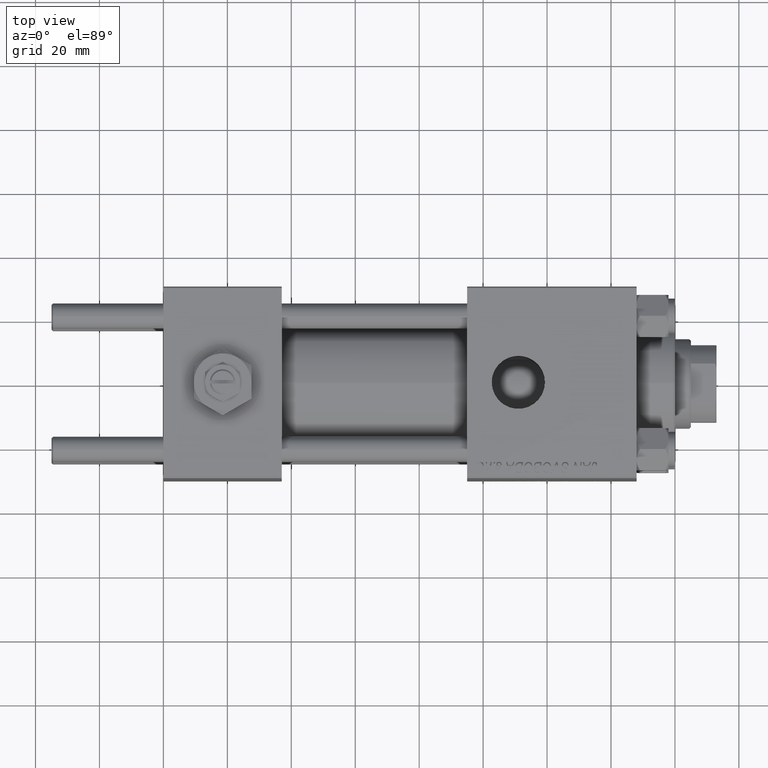
[diagram: clean part render]
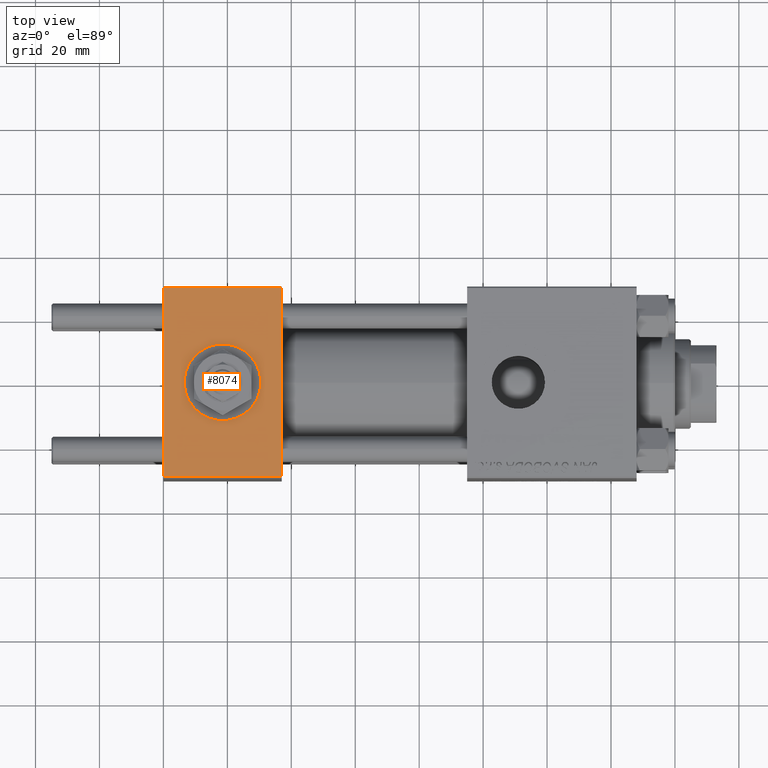
[diagram: same view with one face highlighted and labeled with its STEP entity id]
A machine part, top view. The second image highlights one B-rep face of the part: STEP entity #8074.
In plain terms, the highlighted planar face has unit normal (0, 0, -1).
Its self-contained STEP definition (entity closure, byte-faithful):
#433 = VERTEX_POINT ( 'NONE', #21205 ) ;
#656 = DIRECTION ( 'NONE',  ( -1.000000000000000000, 0.000000000000000000, 0.000000000000000000 ) ) ;
#1170 = LINE ( 'NONE', #45275, #20748 ) ;
#1248 = AXIS2_PLACEMENT_3D ( 'NONE', #49305, #45096, #8616 ) ;
#2579 = CARTESIAN_POINT ( 'NONE',  ( 37.00000000000000000, -29.49999999999998579, 29.99999999999999289 ) ) ;
#2925 = FACE_BOUND ( 'NONE', #46555, .T. ) ;
#3040 = VECTOR ( 'NONE', #656, 1000.000000000000000 ) ;
#4075 = ORIENTED_EDGE ( 'NONE', *, *, #30136, .F. ) ;
#4432 = VERTEX_POINT ( 'NONE', #13449 ) ;
#5857 = CARTESIAN_POINT ( 'NONE',  ( 0.000000000000000000, -29.49999999999998579, 29.99999999999999289 ) ) ;
#6926 = ORIENTED_EDGE ( 'NONE', *, *, #10088, .F. ) ;
#8074 = ADVANCED_FACE ( 'NONE', ( #2925, #33667 ), #29988, .F. ) ;
#8616 = DIRECTION ( 'NONE',  ( 1.000000000000000000, 0.000000000000000000, 0.000000000000000000 ) ) ;
#10088 = EDGE_CURVE ( 'NONE', #48600, #16964, #39950, .T. ) ;
#13449 = CARTESIAN_POINT ( 'NONE',  ( 30.50000000000000000, -3.469446951953614978E-15, 29.99999999999999645 ) ) ;
#13707 = DIRECTION ( 'NONE',  ( 0.000000000000000000, 1.156482317317871725E-16, -1.000000000000000000 ) ) ;
#14354 = EDGE_CURVE ( 'NONE', #4432, #29085, #41119, .T. ) ;
#15237 = ORIENTED_EDGE ( 'NONE', *, *, #46481, .T. ) ;
#16090 = LINE ( 'NONE', #47598, #48497 ) ;
#16964 = VERTEX_POINT ( 'NONE', #2579 ) ;
#17214 = CARTESIAN_POINT ( 'NONE',  ( 0.000000000000000000, 29.49999999999999289, 30.00000000000000000 ) ) ;
#19993 = DIRECTION ( 'NONE',  ( 0.000000000000000000, -1.000000000000000000, -1.156482317317871725E-16 ) ) ;
#20748 = VECTOR ( 'NONE', #33209, 1000.000000000000000 ) ;
#21205 = CARTESIAN_POINT ( 'NONE',  ( 0.000000000000000000, 29.49999999999999289, 30.00000000000000000 ) ) ;
#22096 = ORIENTED_EDGE ( 'NONE', *, *, #42193, .T. ) ;
#23666 = DIRECTION ( 'NONE',  ( 0.000000000000000000, 0.000000000000000000, 1.000000000000000000 ) ) ;
#24200 = ORIENTED_EDGE ( 'NONE', *, *, #14354, .F. ) ;
#24828 = LINE ( 'NONE', #17214, #3040 ) ;
#24880 = CARTESIAN_POINT ( 'NONE',  ( 18.50000000000000000, -3.469446951953614978E-15, 29.99999999999999645 ) ) ;
#29085 = VERTEX_POINT ( 'NONE', #39827 ) ;
#29988 = PLANE ( 'NONE',  #48653 ) ;
#30136 = EDGE_CURVE ( 'NONE', #29085, #4432, #45709, .T. ) ;
#30881 = VERTEX_POINT ( 'NONE', #5857 ) ;
#31662 = CARTESIAN_POINT ( 'NONE',  ( 37.00000000000000000, 29.49999999999999289, 30.00000000000000000 ) ) ;
#33209 = DIRECTION ( 'NONE',  ( 1.000000000000000000, 0.000000000000000000, 0.000000000000000000 ) ) ;
#33667 = FACE_OUTER_BOUND ( 'NONE', #50094, .T. ) ;
#35059 = EDGE_CURVE ( 'NONE', #30881, #16964, #1170, .T. ) ;
#38619 = AXIS2_PLACEMENT_3D ( 'NONE', #24880, #23666, #43608 ) ;
#38635 = ORIENTED_EDGE ( 'NONE', *, *, #35059, .T. ) ;
#39827 = CARTESIAN_POINT ( 'NONE',  ( 6.499999999999997335, -1.999870792976790833E-15, 29.99999999999999645 ) ) ;
#39950 = LINE ( 'NONE', #51747, #41208 ) ;
#41119 = CIRCLE ( 'NONE', #38619, 12.00000000000000000 ) ;
#41208 = VECTOR ( 'NONE', #19993, 1000.000000000000000 ) ;
#42193 = EDGE_CURVE ( 'NONE', #433, #30881, #16090, .T. ) ;
#43608 = DIRECTION ( 'NONE',  ( 1.000000000000000000, 0.000000000000000000, 0.000000000000000000 ) ) ;
#45096 = DIRECTION ( 'NONE',  ( 0.000000000000000000, 0.000000000000000000, 1.000000000000000000 ) ) ;
#45275 = CARTESIAN_POINT ( 'NONE',  ( 37.00000000000000000, -29.50000000000000000, 29.99999999999999289 ) ) ;
#45709 = CIRCLE ( 'NONE', #1248, 12.00000000000000000 ) ;
#45739 = DIRECTION ( 'NONE',  ( 0.000000000000000000, 1.000000000000000000, 1.156482317317871725E-16 ) ) ;
#46481 = EDGE_CURVE ( 'NONE', #48600, #433, #24828, .T. ) ;
#46555 = EDGE_LOOP ( 'NONE', ( #24200, #4075 ) ) ;
#47082 = DIRECTION ( 'NONE',  ( 0.000000000000000000, -1.000000000000000000, -1.156482317317871725E-16 ) ) ;
#47598 = CARTESIAN_POINT ( 'NONE',  ( 0.000000000000000000, 29.99999999999999289, 30.00000000000000000 ) ) ;
#48497 = VECTOR ( 'NONE', #47082, 1000.000000000000000 ) ;
#48600 = VERTEX_POINT ( 'NONE', #31662 ) ;
#48653 = AXIS2_PLACEMENT_3D ( 'NONE', #49681, #13707, #45739 ) ;
#49305 = CARTESIAN_POINT ( 'NONE',  ( 18.50000000000000000, -3.469446951953614978E-15, 29.99999999999999645 ) ) ;
#49681 = CARTESIAN_POINT ( 'NONE',  ( 37.00000000000000000, 29.99999999999999289, 30.00000000000000000 ) ) ;
#50094 = EDGE_LOOP ( 'NONE', ( #22096, #38635, #6926, #15237 ) ) ;
#51747 = CARTESIAN_POINT ( 'NONE',  ( 37.00000000000000000, 29.99999999999999289, 30.00000000000000000 ) ) ;